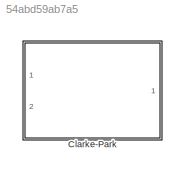
MODEL slx_54abd59ab7a5
KIND model
CONFIG AbsTol = auto
CONFIG FixedStep = auto
CONFIG MaxStep = auto
CONFIG MinStep = auto
CONFIG RelTol = 1e-3
CONFIG SampleTimeConstraint = Unconstrained
CONFIG Solver = VariableStepAuto
CONFIG SolverMode = Auto
CONFIG SolverName = VariableStepAuto
CONFIG StartTime = 0.0
CONFIG StopTime = 10.0
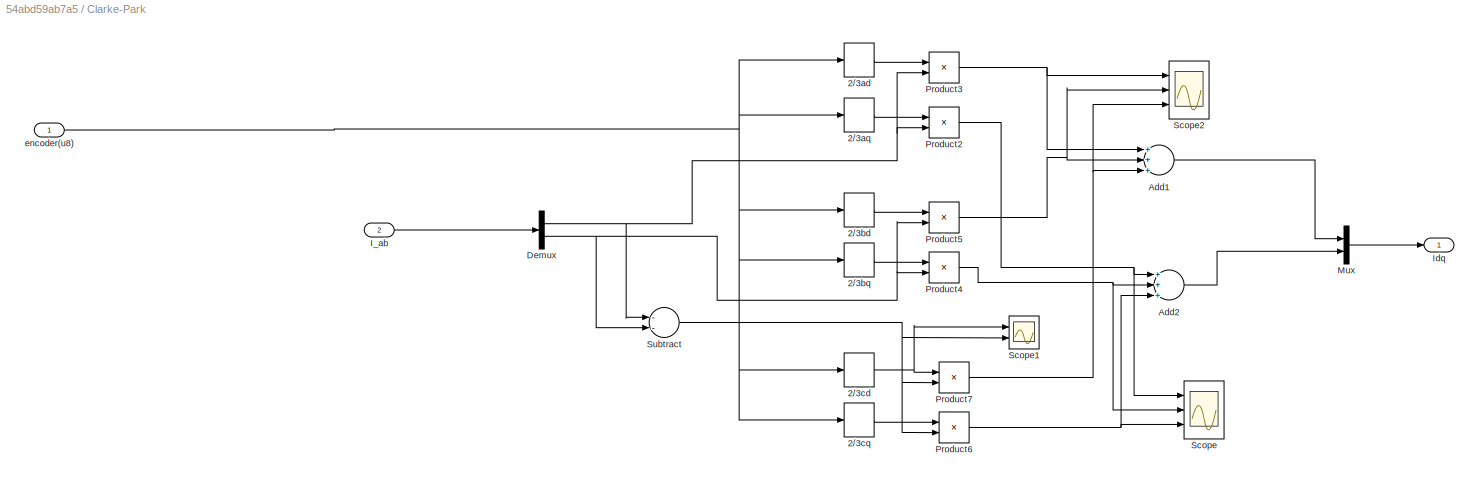
BLOCK [SubSystem] Clarke-Park
  Ports = [2, 1]
  RequestExecContextInheritance = off
  SystemSampleTime = T
  Variant = off
BLOCK [Lookup_n-D] Clarke-Park/2//3ad
  BreakpointsForDimension1 = n1
  InternalRulePriority = Speed
  InterpMethod = Nearest
  NumberOfTableDimensions = 1
  Ports = [1, 1]
  RndMeth = Simplest
  Table = ad*2/3
BLOCK [Lookup_n-D] Clarke-Park/2//3aq
  BreakpointsForDimension1 = n1
  InternalRulePriority = Speed
  InterpMethod = Nearest
  NumberOfTableDimensions = 1
  Ports = [1, 1]
  RndMeth = Simplest
  Table = aq*2/3
BLOCK [Lookup_n-D] Clarke-Park/2//3bd
  BreakpointsForDimension1 = n1
  InternalRulePriority = Speed
  InterpMethod = Nearest
  NumberOfTableDimensions = 1
  Ports = [1, 1]
  RndMeth = Simplest
  Table = bd*2/3
BLOCK [Lookup_n-D] Clarke-Park/2//3bq
  BreakpointsForDimension1 = n1
  InternalRulePriority = Speed
  InterpMethod = Nearest
  NumberOfTableDimensions = 1
  Ports = [1, 1]
  RndMeth = Simplest
  Table = bq*2/3
BLOCK [Lookup_n-D] Clarke-Park/2//3cd
  BreakpointsForDimension1 = n1
  InternalRulePriority = Speed
  InterpMethod = Nearest
  NumberOfTableDimensions = 1
  Ports = [1, 1]
  RndMeth = Simplest
  Table = cd*2/3
BLOCK [Lookup_n-D] Clarke-Park/2//3cq
  BreakpointsForDimension1 = n1
  InternalRulePriority = Speed
  InterpMethod = Nearest
  NumberOfTableDimensions = 1
  Ports = [1, 1]
  RndMeth = Simplest
  Table = cq*2/3
BLOCK [Sum] Clarke-Park/Add1
  InputSameDT = off
  Inputs = +++
  OutDataTypeStr = Inherit: Inherit via internal rule
  Ports = [3, 1]
  SaturateOnIntegerOverflow = off
BLOCK [Sum] Clarke-Park/Add2
  InputSameDT = off
  Inputs = +++
  OutDataTypeStr = Inherit: Inherit via internal rule
  Ports = [3, 1]
  SaturateOnIntegerOverflow = off
BLOCK [Demux] Clarke-Park/Demux
  DisplayOption = bar
  Outputs = 2
  Ports = [1, 2]
BLOCK [Inport] Clarke-Park/I_ab
  IconDisplay = Port number
  Port = 2
BLOCK [Outport] Clarke-Park/Idq
  IconDisplay = Port number
BLOCK [Mux] Clarke-Park/Mux
  DisplayOption = bar
  Inputs = 2
  Ports = [2, 1]
BLOCK [Product] Clarke-Park/Product2
  InputSameDT = off
  OutDataTypeStr = Inherit: Inherit via internal rule
  Ports = [2, 1]
  RndMeth = Floor
  SaturateOnIntegerOverflow = off
BLOCK [Product] Clarke-Park/Product3
  InputSameDT = off
  OutDataTypeStr = Inherit: Inherit via internal rule
  Ports = [2, 1]
  RndMeth = Floor
  SaturateOnIntegerOverflow = off
BLOCK [Product] Clarke-Park/Product4
  InputSameDT = off
  OutDataTypeStr = Inherit: Inherit via internal rule
  Ports = [2, 1]
  RndMeth = Floor
  SaturateOnIntegerOverflow = off
BLOCK [Product] Clarke-Park/Product5
  InputSameDT = off
  OutDataTypeStr = Inherit: Inherit via internal rule
  Ports = [2, 1]
  RndMeth = Floor
  SaturateOnIntegerOverflow = off
BLOCK [Product] Clarke-Park/Product6
  InputSameDT = off
  OutDataTypeStr = Inherit: Inherit via internal rule
  Ports = [2, 1]
  RndMeth = Floor
  SaturateOnIntegerOverflow = off
BLOCK [Product] Clarke-Park/Product7
  InputSameDT = off
  OutDataTypeStr = Inherit: Inherit via internal rule
  Ports = [2, 1]
  RndMeth = Floor
  SaturateOnIntegerOverflow = off
BLOCK [Scope] Clarke-Park/Scope
  NumInputPorts = 3
  Ports = [3]
  ScopeSpecificationString = Simulink.scopes.TimeScopeBlockCfg('CurrentConfiguration', extmgr.ConfigurationSet(extmgr.Configuration('Core','General UI',true),extmgr.Configuration('Core','Source UI',true),extmgr.Configuration('Sources','WiredSimulink',true,'DataLoggingVariableName','ScopeData3','DataLoggingSaveFormat','Array','DataLoggingDecimation','1'),extmgr.Configuration('Visuals','Time Domain',true,'SerializedDisplays',{s...<+1890ch>
BLOCK [Scope] Clarke-Park/Scope1
  NumInputPorts = 2
  Ports = [2]
  ScopeSpecificationString = Simulink.scopes.TimeScopeBlockCfg('CurrentConfiguration', extmgr.ConfigurationSet(extmgr.Configuration('Core','General UI',true),extmgr.Configuration('Core','Source UI',true),extmgr.Configuration('Sources','WiredSimulink',true,'DataLoggingVariableName','ScopeData1'),extmgr.Configuration('Visuals','Time Domain',true,'SerializedDisplays',{struct('MinYLimReal','-0.75291','MaxYLimReal','0.72171','YLab...<+2066ch>
BLOCK [Scope] Clarke-Park/Scope2
  NumInputPorts = 3
  Ports = [3]
  ScopeSpecificationString = Simulink.scopes.TimeScopeBlockCfg('CurrentConfiguration', extmgr.ConfigurationSet(extmgr.Configuration('Core','General UI',true),extmgr.Configuration('Core','Source UI',true),extmgr.Configuration('Sources','WiredSimulink',true,'DataLoggingVariableName','ScopeData4','DataLoggingSaveFormat','Array','DataLoggingDecimation','1','DataLoggingDecimateData',true),extmgr.Configuration('Visuals','Time Domai...<+1601ch>
BLOCK [Sum] Clarke-Park/Subtract
  InputSameDT = off
  Inputs = --
  OutDataTypeStr = Inherit: Inherit via internal rule
  Ports = [2, 1]
  SaturateOnIntegerOverflow = off
BLOCK [Inport] Clarke-Park/encoder(u8)
  IconDisplay = Port number
LINE Clarke-Park/2//3ad:1 -> Clarke-Park/Product3:1
LINE Clarke-Park/2//3aq:1 -> Clarke-Park/Product2:1
LINE Clarke-Park/2//3bd:1 -> Clarke-Park/Product5:1
LINE Clarke-Park/2//3bq:1 -> Clarke-Park/Product4:1
NET Clarke-Park/2//3cd:1 -> Clarke-Park/Product7:1, Clarke-Park/Scope1:1
LINE Clarke-Park/2//3cq:1 -> Clarke-Park/Product6:1
LINE Clarke-Park/Add1:1 -> Clarke-Park/Mux:1
LINE Clarke-Park/Add2:1 -> Clarke-Park/Mux:2
NET Clarke-Park/Demux:1 -> Clarke-Park/Product2:2, Clarke-Park/Product3:2, Clarke-Park/Subtract:1
NET Clarke-Park/Demux:2 -> Clarke-Park/Product4:2, Clarke-Park/Product5:2, Clarke-Park/Subtract:2
LINE Clarke-Park/I_ab:1 -> Clarke-Park/Demux:1
LINE Clarke-Park/Mux:1 -> Clarke-Park/Idq:1
NET Clarke-Park/Product2:1 -> Clarke-Park/Add2:1, Clarke-Park/Scope:1
NET Clarke-Park/Product3:1 -> Clarke-Park/Add1:1, Clarke-Park/Scope2:1
NET Clarke-Park/Product4:1 -> Clarke-Park/Add2:2, Clarke-Park/Scope:2
NET Clarke-Park/Product5:1 -> Clarke-Park/Add1:2, Clarke-Park/Scope2:2
NET Clarke-Park/Product6:1 -> Clarke-Park/Add2:3, Clarke-Park/Scope:3
NET Clarke-Park/Product7:1 -> Clarke-Park/Add1:3, Clarke-Park/Scope2:3
NET Clarke-Park/Subtract:1 -> Clarke-Park/Product6:2, Clarke-Park/Product7:2, Clarke-Park/Scope1:2
NET Clarke-Park/encoder(u8):1 -> Clarke-Park/2//3ad:1, Clarke-Park/2//3aq:1, Clarke-Park/2//3bd:1, Clarke-Park/2//3bq:1, Clarke-Park/2//3cd:1, Clarke-Park/2//3cq:1
note: NET lines group one-source signal fan-out (src -> all destinations, sorted); 1:1 wires keep LINE
